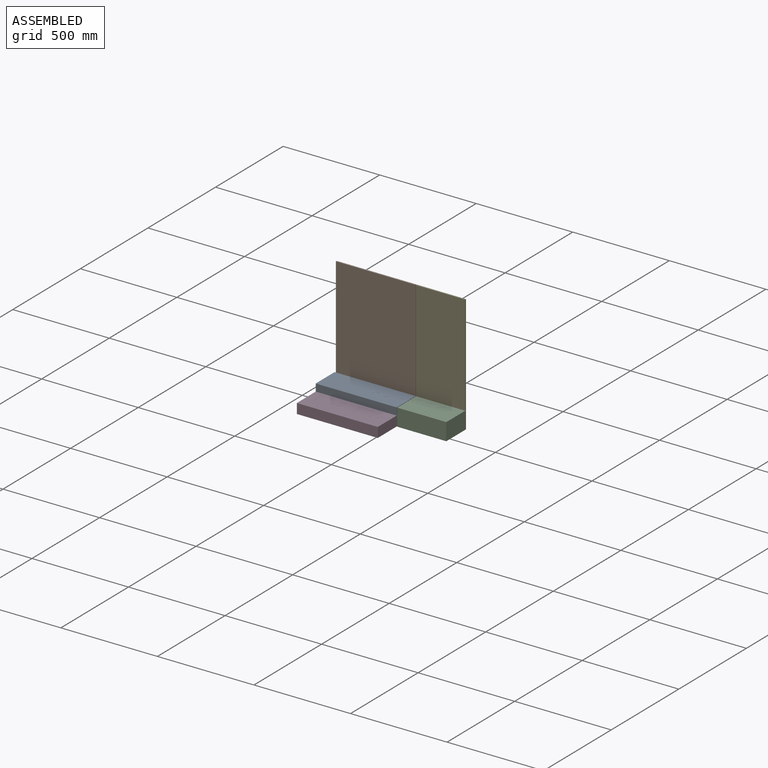
[diagram: assembled view]
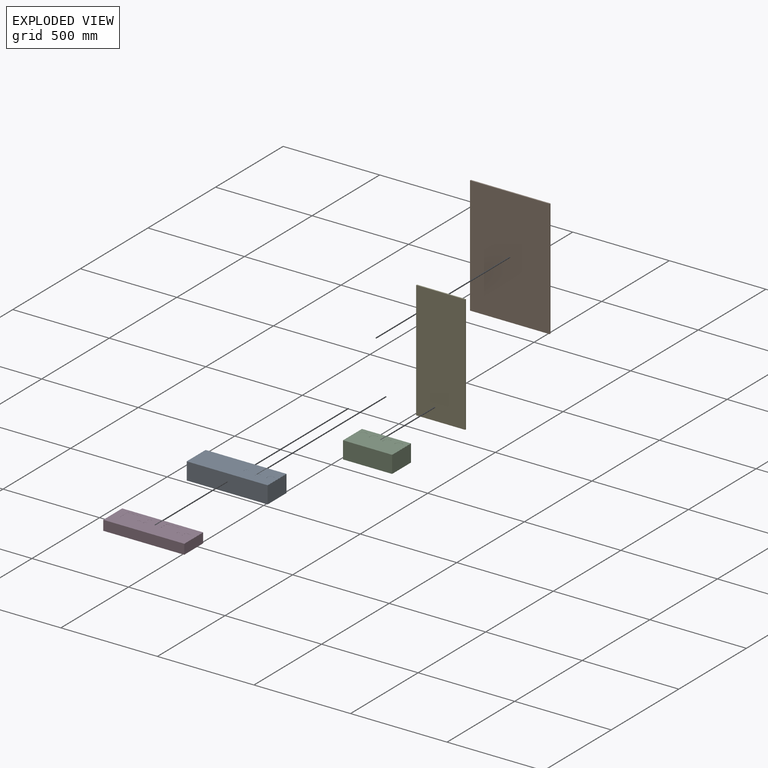
[diagram: exploded view]
GUIDED TOUR — MATED ASSEMBLY (Onshape document f00963a7d7a4211e00dad0f2, AutoMate assembly f00963a7d7a4211e00dad0f2_93f766040c664074911c7c15_0f9a326952b8779f440d1b9e_default)

This assembly has 5 components, labeled P0..P4 below (a component is one placed occurrence of a part; the same part can appear more than once), held together by 9 mates. A mate is a constraint between two components; its type names the relative motion it leaves free:
  PLANAR — leaves sliding in the plane through the listed point (normal = the listed direction) and rotation about that normal free.
Axis/direction vectors are unit vectors and 'through' points are millimeter coordinates, both in the assembly's world frame.

MATES
  1. PLANAR "Planar 3": P0 <-> P1, direction (0.000, 1.000, 0.000) through (-183.92, 86.65, 11.47) mm
  2. PLANAR "Planar 5": P0 <-> P3, direction (0.000, -1.000, 0.000) through (-183.92, -53.05, -32.65) mm
  3. PLANAR "Planar 4": P0 <-> P3, direction (1.000, 0.000, 0.000) through (25.63, 16.80, -32.77) mm
  4. PLANAR "Planar 9": P4 <-> P2, direction (-1.000, 0.000, 0.000) through (28.81, 89.82, 227.37) mm
  5. PLANAR "Planar 2": P0 <-> P1, direction (1.000, 0.000, 0.000) through (25.63, 16.80, -32.77) mm
  6. PLANAR "Planar 8": P4 <-> P2, direction (0.000, -1.000, 0.000) through (155.81, 86.65, 227.37) mm
  7. PLANAR "Planar 1": P1 <-> P0, direction (0.000, 0.000, -1.000) through (-180.74, 89.82, -77.43) mm
  8. PLANAR "Planar 7": P4 <-> P2, direction (0.000, 0.000, -1.000) through (155.81, 89.82, -77.43) mm
  9. PLANAR "Planar 6": P0 <-> P3, direction (0.000, 0.000, -1.000) through (-183.92, 16.80, -77.43) mm

ASSEMBLY ORDER
  1. P4 — the base component [order verified]
  2. P1 [order verified]
  3. P2 [order verified]
  4. P0 [order verified]
  5. P3 [order verified]
Order-tag legend:
  [order verified] — this step's position reverses a verified removal order: the component was checked to insert without passing through the ones already placed.

Of the 5 components, 4 carry the full construction recipe — the FeatureScript program that regenerates the part's solid from scratch; the rest are supplied as boundary geometry only.
Each toured component is shown spotlighted twice — in the assembled view, then in the exploded view, where a leader line traces a displaced component back to its assembled socket (saturated green if recipe-attached, orange if geometry-only; every other component desaturated gray) — followed by its recipe or geometry summary and the mates that hold it.
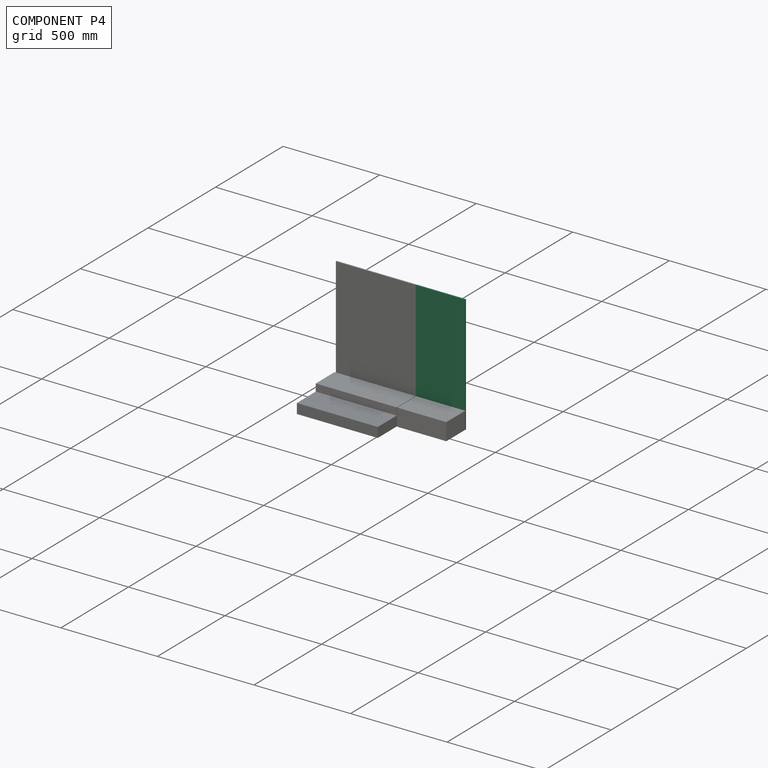
[diagram: component P4 — assembled]
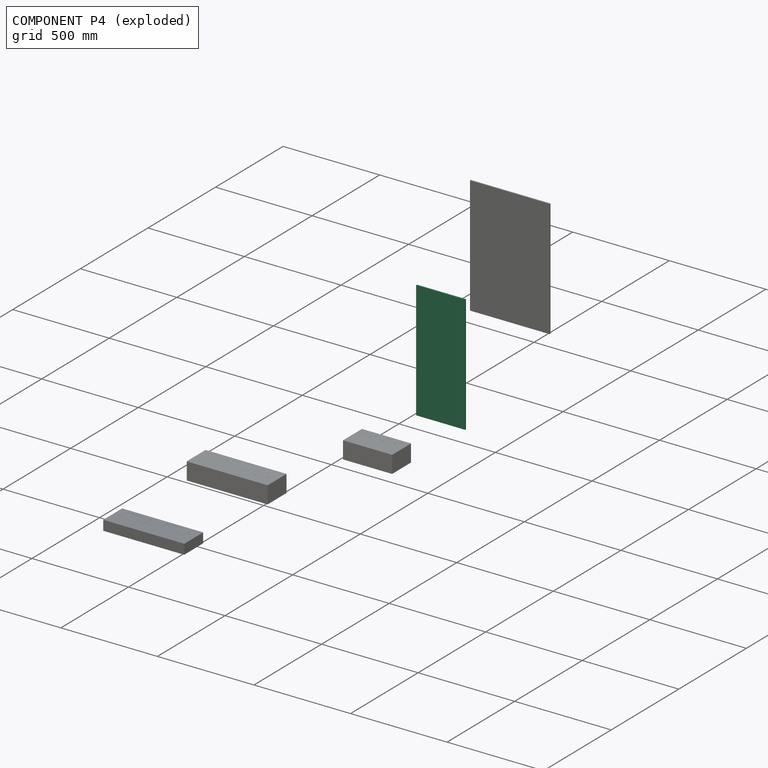
[diagram: component P4 — exploded]
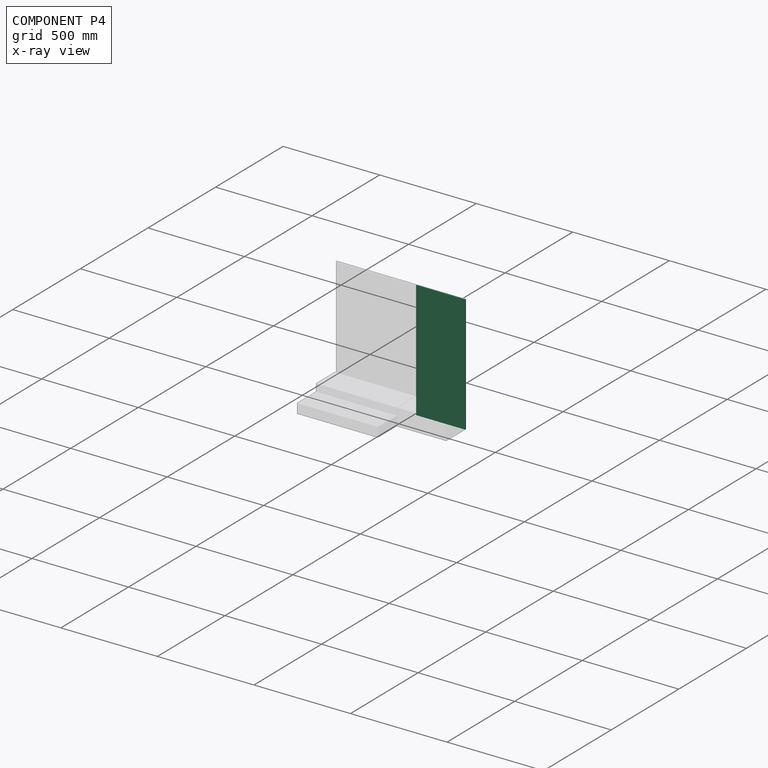
[diagram: component P4 — x-ray view]
COMPONENT P4 — recipe-attached (CADFS 00839162, mesh-verified: the recipe's output STEP matches this component's geometry to below the mesh-comparison resolution (tessellation chordal tolerance ~0.991 mm)).
Held by: PLANAR mate "Planar 9" to P2; PLANAR mate "Planar 8" to P2; PLANAR mate "Planar 7" to P2.
Construction recipe (FeatureScript — the CAD program that rebuilds this solid; sketch coordinates are in the units given by the * unit suffixes, e.g. mm):

FeatureScript 1511;
import(path : "onshape/std/geometry.fs", version : "1511.0");
import(path : "onshape/std/common.fs", version : "1511.0");
const mm = millimeter;
const VERTEX = EntityType.VERTEX;
const EDGE = EntityType.EDGE;
const FACE = EntityType.FACE;
const BODY = EntityType.BODY;
function v(x, y){return vector(x, y);}
function OD(order){return orderDisambiguation(order);}
function OSD(set){return originalSetDisambiguation(set);}
function TD(topology){return topologyDisambiguation(topology);}
function TDD(query){return trueDependencyDisambiguation(query);}
function sQuery(a, b, c) {return sketchEntityQuery(a, b, c);}

annotation { "Feature Type Name" : "Feature", "Feature Type Description" : "" }
export const myFeature = defineFeature(function(context is Context, id is Id, definition is map)
    precondition{}
    {
        {
            var Q0;
            Q0=qCreatedBy(makeId("Front.planeOp"),FACE);
            var sketch = newSketch(context, id + "F0", { "sketchPlane" : qUnion([Q0])});
            skLineSegment(sketch, "E0.bottom", {"start": v(0, 0) * mm, "end": v(-254, 0) * mm});
            skLineSegment(sketch, "E0.top", {"start": v(0, 609.6) * mm, "end": v(-254, 609.6) * mm});
            skLineSegment(sketch, "E0.left", {"start": v(0, 0) * mm, "end": v(0, 609.6) * mm});
            skLineSegment(sketch, "E0.right", {"start": v(-254, 0) * mm, "end": v(-254, 609.6) * mm});
            skSolve(sketch);
        }
        {
            var Q0;
            Q0=qSketchRegion(id+"F0",true);
            extrude(context, id + "F1", {"entities" : qUnion([Q0]), "oppositeDirection" : true, "depth" : 6.35 * mm, "offsetDistance" : 25.4 * mm});
        }
    });
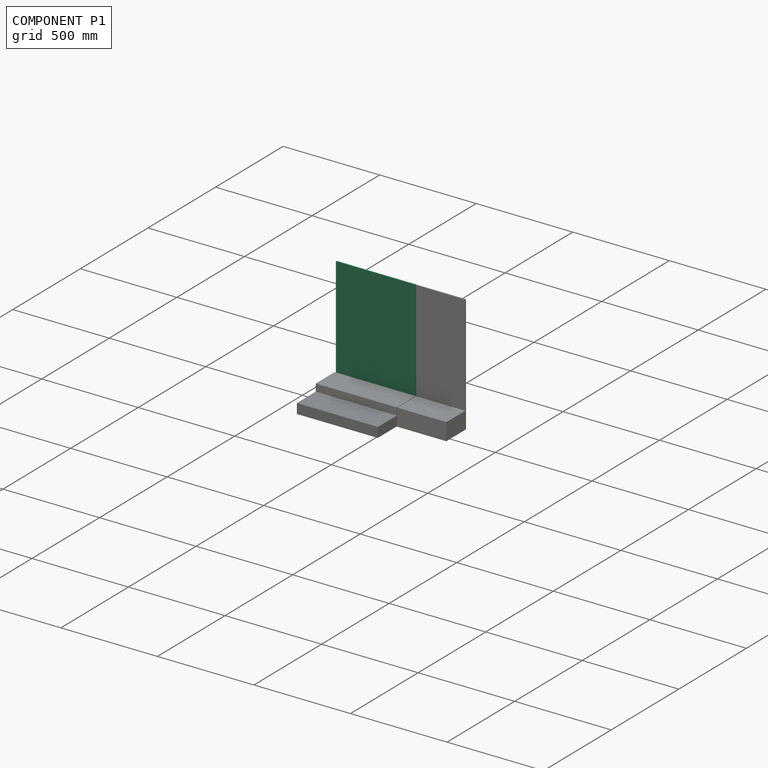
[diagram: component P1 — assembled]
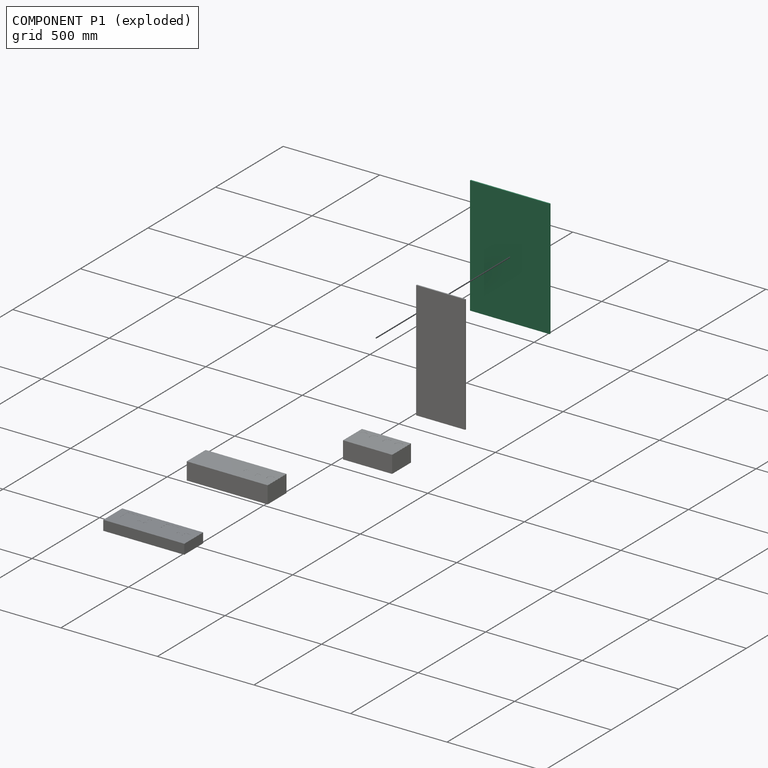
[diagram: component P1 — exploded]
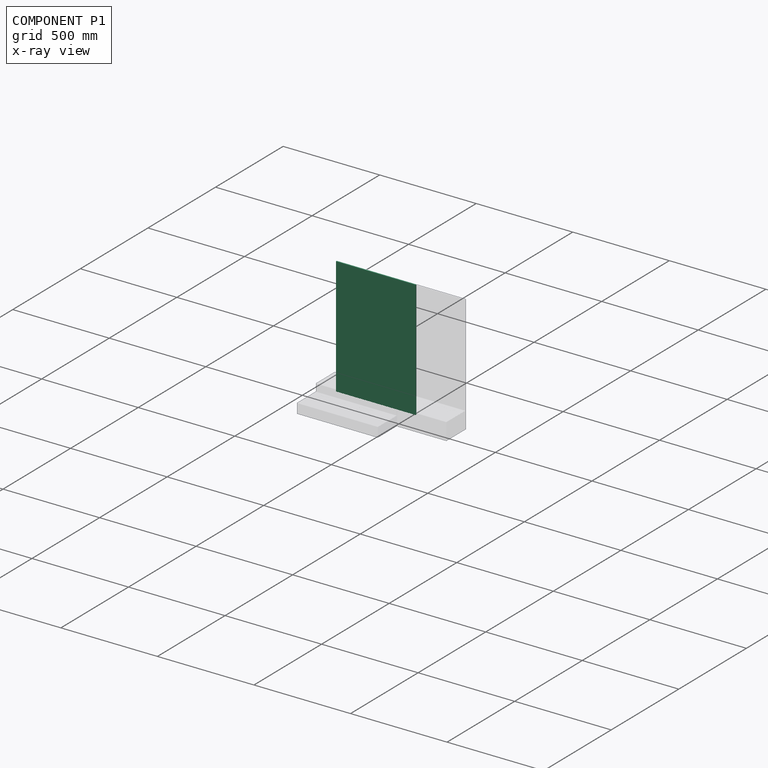
[diagram: component P1 — x-ray view]
COMPONENT P1 — recipe-attached (CADFS 00839161, mesh-verified: the recipe's output STEP matches this component's geometry to below the mesh-comparison resolution (tessellation chordal tolerance ~1.1 mm)).
Held by: PLANAR mate "Planar 3" to P0; PLANAR mate "Planar 2" to P0; PLANAR mate "Planar 1" to P0.
Construction recipe (FeatureScript — the CAD program that rebuilds this solid; sketch coordinates are in the units given by the * unit suffixes, e.g. mm):

FeatureScript 1511;
import(path : "onshape/std/geometry.fs", version : "1511.0");
import(path : "onshape/std/common.fs", version : "1511.0");
const mm = millimeter;
const VERTEX = EntityType.VERTEX;
const EDGE = EntityType.EDGE;
const FACE = EntityType.FACE;
const BODY = EntityType.BODY;
function v(x, y){return vector(x, y);}
function OD(order){return orderDisambiguation(order);}
function OSD(set){return originalSetDisambiguation(set);}
function TD(topology){return topologyDisambiguation(topology);}
function TDD(query){return trueDependencyDisambiguation(query);}
function sQuery(a, b, c) {return sketchEntityQuery(a, b, c);}

annotation { "Feature Type Name" : "Feature", "Feature Type Description" : "" }
export const myFeature = defineFeature(function(context is Context, id is Id, definition is map)
    precondition{}
    {
        {
            var Q0;
            Q0=qCreatedBy(makeId("Front.planeOp"),FACE);
            var sketch = newSketch(context, id + "F0", { "sketchPlane" : qUnion([Q0])});
            skLineSegment(sketch, "E0.bottom", {"start": v(0, 0) * mm, "end": v(-412.75, 0) * mm});
            skLineSegment(sketch, "E0.top", {"start": v(0, 609.6) * mm, "end": v(-412.75, 609.6) * mm});
            skLineSegment(sketch, "E0.left", {"start": v(0, 0) * mm, "end": v(0, 609.6) * mm});
            skLineSegment(sketch, "E0.right", {"start": v(-412.75, 0) * mm, "end": v(-412.75, 609.6) * mm});
            skSolve(sketch);
        }
        {
            var Q0;
            Q0 = qSketchRegion(id + "F0", true);
            extrude(context, id + "F1", {"entities" : qUnion([Q0]), "oppositeDirection" : true, "depth" : 6.35 * mm, "offsetDistance" : 25.4 * mm});
        }
    });
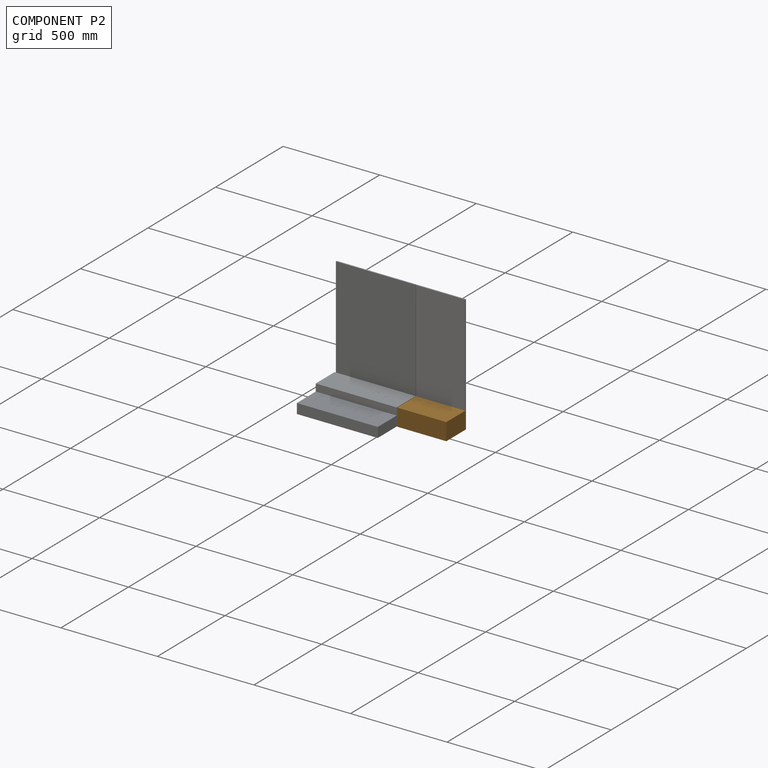
[diagram: component P2 — assembled]
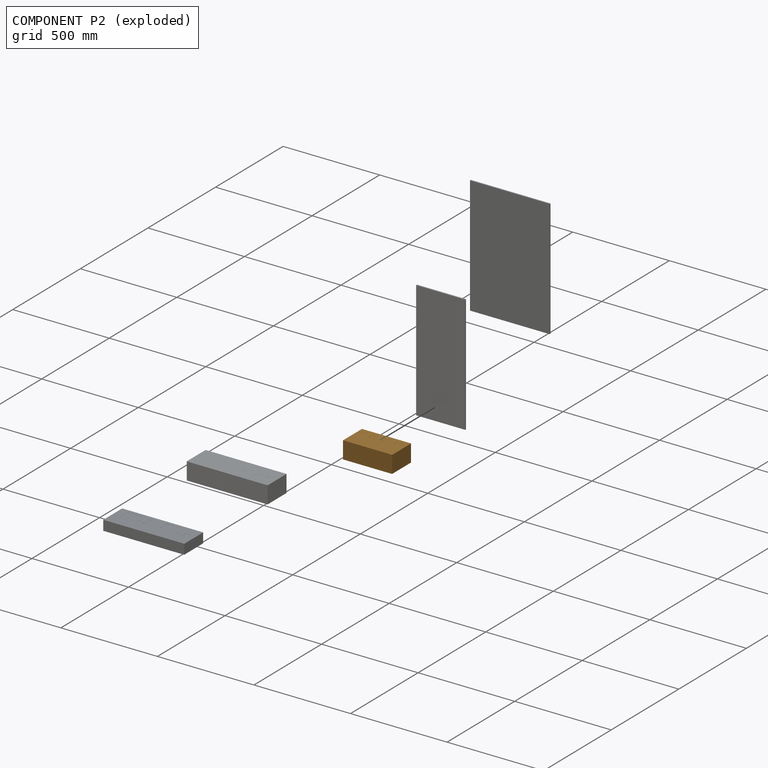
[diagram: component P2 — exploded]
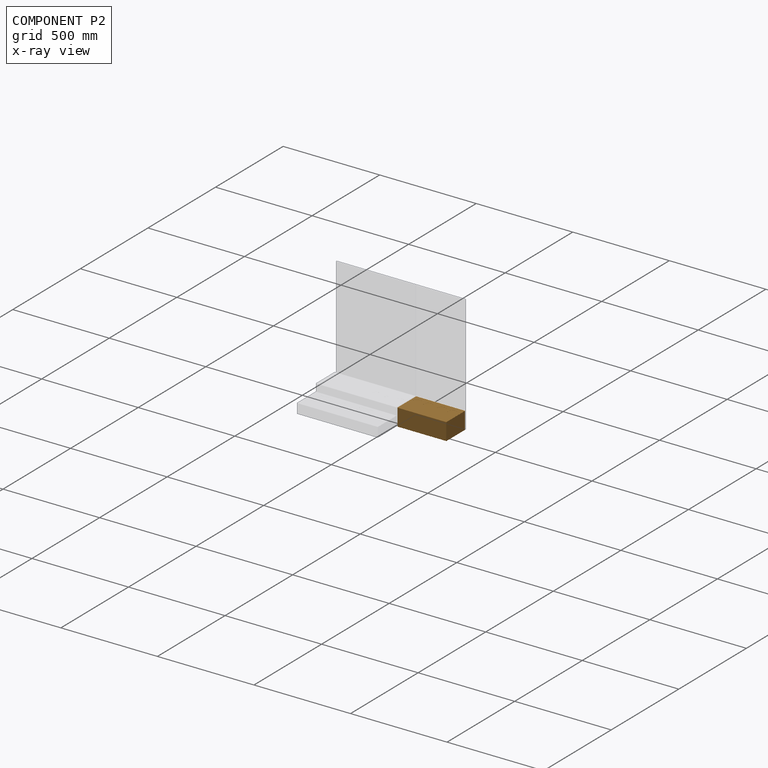
[diagram: component P2 — x-ray view]
COMPONENT P2 — geometry summary (no construction recipe available for this part):
  bounding box: 254.0 x 139.7 x 89.6 mm
  B-rep topology: 1 solid, 26 faces, 144 edges
  volume: 3166701 mm^3 (100% of its bounding box)
  symmetry: 2-fold rotationally symmetric about the x axis; 2-fold rotationally symmetric about the y axis; 2-fold rotationally symmetric about the z axis; mirror-symmetric across its x mid-plane, y mid-plane, z mid-plane
Held by: PLANAR mate "Planar 9" to P4; PLANAR mate "Planar 8" to P4; PLANAR mate "Planar 7" to P4.
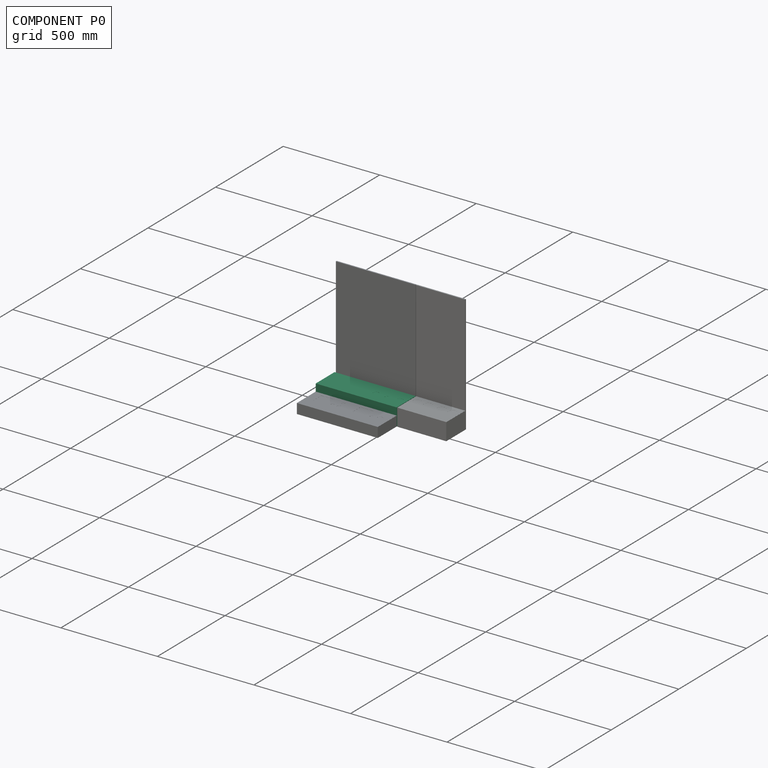
[diagram: component P0 — assembled]
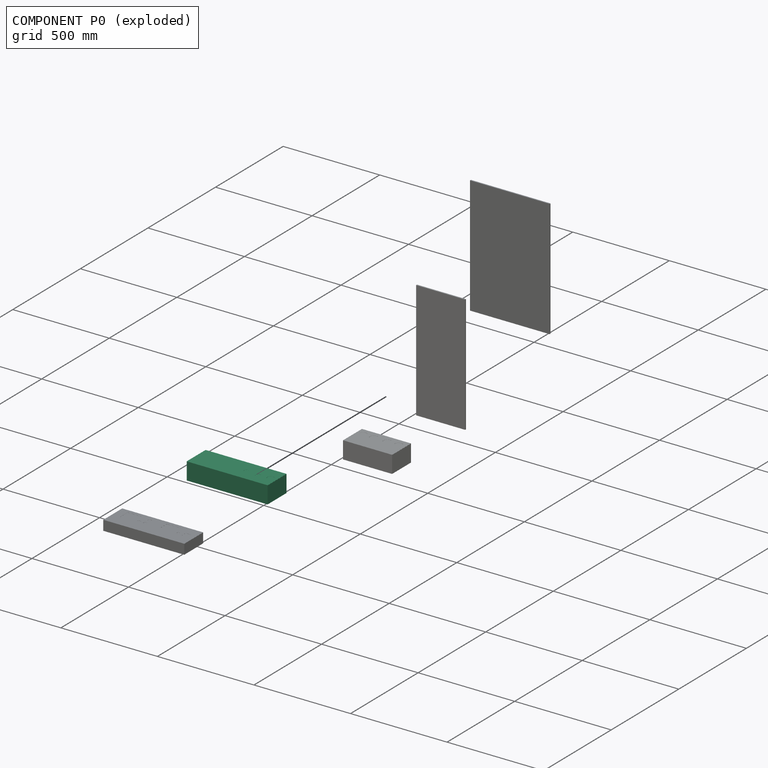
[diagram: component P0 — exploded]
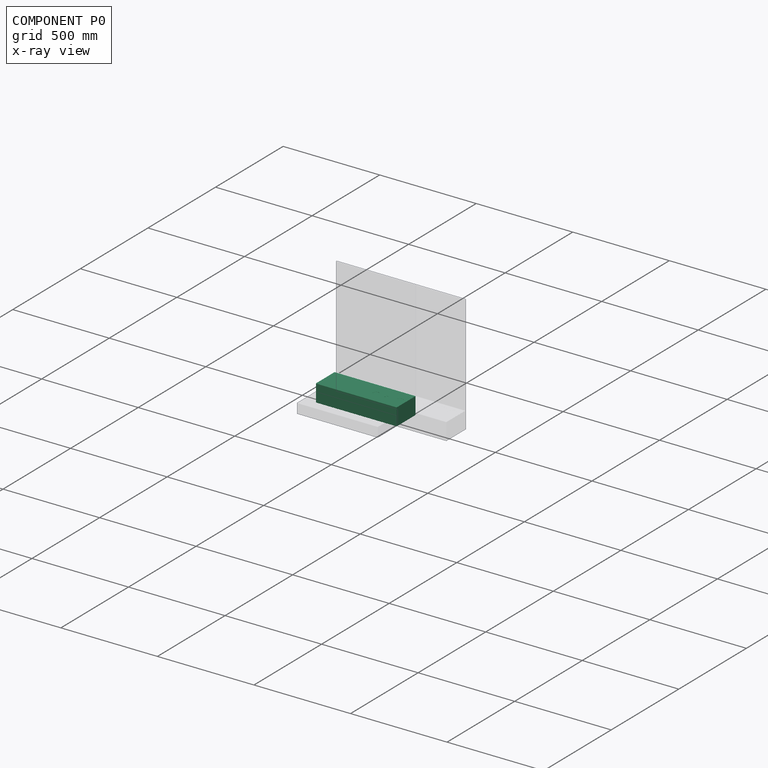
[diagram: component P0 — x-ray view]
COMPONENT P0 — recipe-attached (CADFS 00867122, mesh-verified: the recipe's output STEP matches this component's geometry to below the mesh-comparison resolution (tessellation chordal tolerance ~0.676 mm)).
Held by: PLANAR mate "Planar 3" to P1; PLANAR mate "Planar 5" to P3; PLANAR mate "Planar 4" to P3; PLANAR mate "Planar 2" to P1; PLANAR mate "Planar 1" to P1; PLANAR mate "Planar 6" to P3.
Construction recipe (FeatureScript — the CAD program that rebuilds this solid; sketch coordinates are in the units given by the * unit suffixes, e.g. mm):

FeatureScript 1511;
import(path : "onshape/std/geometry.fs", version : "1511.0");
import(path : "onshape/std/common.fs", version : "1511.0");
const mm = millimeter;
const VERTEX = EntityType.VERTEX;
const EDGE = EntityType.EDGE;
const FACE = EntityType.FACE;
const BODY = EntityType.BODY;
function v(x, y){return vector(x, y);}
function OD(order){return orderDisambiguation(order);}
function OSD(set){return originalSetDisambiguation(set);}
function TD(topology){return topologyDisambiguation(topology);}
function TDD(query){return trueDependencyDisambiguation(query);}
function sQuery(a, b, c) {return sketchEntityQuery(a, b, c);}

annotation { "Feature Type Name" : "Feature", "Feature Type Description" : "" }
export const myFeature = defineFeature(function(context is Context, id is Id, definition is map)
    precondition{}
    {
        {
            var Q0;
            Q0=qCreatedBy(makeId("Right.planeOp"),FACE);
            var sketch = newSketch(context, id + "F0", { "sketchPlane" : qUnion([Q0])});
            skLineSegment(sketch, "E0.bottom", {"start": v(0, 0) * mm, "end": v(-139.7, 0) * mm});
            skLineSegment(sketch, "E0.top", {"start": v(0, 88.9) * mm, "end": v(-139.3, 88.9) * mm});
            skLineSegment(sketch, "E0.left", {"start": v(0, 0) * mm, "end": v(0, 88.9) * mm});
            skLineSegment(sketch, "E0.right", {"start": v(-139.7, 0) * mm, "end": v(-139.7, 89.56) * mm});
            skLineSegment(sketch, "E1", {"start": v(-139.7, 89.56) * mm, "end": v(0, 89.56) * mm});
            skLineSegment(sketch, "E2", {"start": v(0, 89.56) * mm, "end": v(0, 89.15) * mm});
            skLineSegment(sketch, "E3", {"start": v(0, 89.15) * mm, "end": v(-139.3, 89.15) * mm});
            skLineSegment(sketch, "E4", {"start": v(-139.3, 88.9) * mm, "end": v(-139.3, 89.15) * mm});
            skLineSegment(sketch, "E5", {"start": v(-139.3, 88.9) * mm, "end": v(-139.7, 88.9) * mm, "construction": true});
            skSolve(sketch);
        }
        {
            var Q0;
            Q0=qSketchRegion(id+"F0",true);
            extrude(context, id + "F1", {"entities" : qUnion([Q0]), "endBound" : BoundingType.SYMMETRIC, "depth" : 419.1 * mm, "offsetDistance" : 25.4 * mm});
        }
        {
            var Q0;
            Q0=makeQuery(id+"F1.opExtrude","SWEPT_FACE",FACE,{"disambiguationData":[OSD([sQuery(id+"F0.wireOp",EDGE,"E1")])]});
            var sketch = newSketch(context, id + "F2", { "sketchPlane" : qUnion([Q0])});
            skLineSegment(sketch, "E6", {"start": v(107.52, -70.62) * mm, "end": v(107.52, -87.29) * mm});
            skLineSegment(sketch, "E7", {"start": v(127.36, -87.29) * mm, "end": v(127.36, -70.62) * mm});
            skLineSegment(sketch, "E8", {"start": v(-209.58, -139.68) * mm, "end": v(-209.58, -0.77) * mm, "construction": true});
            skLineSegment(sketch, "E9", {"start": v(209.52, -139.68) * mm, "end": v(209.52, -0.77) * mm, "construction": true});
            skLineSegment(sketch, "E10", {"start": v(-209.58, -0.77) * mm, "end": v(209.52, -0.77) * mm, "construction": true});
            skLineSegment(sketch, "E11", {"start": v(109.1, -88.88) * mm, "end": v(125.78, -88.88) * mm});
            skLineSegment(sketch, "E12", {"start": v(125.78, -69.03) * mm, "end": v(109.1, -69.03) * mm});
            skLineSegment(sketch, "E13", {"start": v(209.52, -139.68) * mm, "end": v(-209.58, -139.68) * mm, "construction": true});
            skFitSpline(sketch, "E14", {"points": [v(57.12, -59.5) * mm, v(53.27, -59.5) * mm, v(49.45, -61.1) * mm, v(46.73, -63.8) * mm]});
            skFitSpline(sketch, "E15", {"points": [v(46.73, -63.8) * mm, v(44.01, -66.53) * mm, v(42.43, -70.35) * mm, v(42.43, -74.2) * mm, v(42.43, -78.04) * mm, v(44.01, -81.86) * mm, v(46.73, -84.58) * mm]});
            skFitSpline(sketch, "E16", {"points": [v(46.73, -84.58) * mm, v(49.45, -87.3) * mm, v(53.27, -88.88) * mm, v(57.12, -88.88) * mm, v(60.96, -88.88) * mm, v(64.78, -87.3) * mm, v(67.5, -84.58) * mm]});
            skFitSpline(sketch, "E17", {"points": [v(67.5, -84.58) * mm, v(70.22, -81.86) * mm, v(71.8, -78.04) * mm, v(71.8, -74.2) * mm, v(71.8, -70.35) * mm, v(70.22, -66.53) * mm, v(67.5, -63.8) * mm]});
            skFitSpline(sketch, "E18", {"points": [v(67.5, -63.8) * mm, v(64.78, -61.1) * mm, v(60.96, -59.5) * mm, v(57.12, -59.5) * mm]});
            skFitSpline(sketch, "E19", {"points": [v(109.1, -69.03) * mm, v(108.7, -69.03) * mm, v(108.28, -69.2) * mm, v(107.98, -69.5) * mm]});
            skFitSpline(sketch, "E20", {"points": [v(107.98, -69.5) * mm, v(107.7, -69.8) * mm, v(107.52, -70.2) * mm, v(107.52, -70.62) * mm]});
            skFitSpline(sketch, "E21", {"points": [v(107.52, -87.29) * mm, v(107.52, -87.7) * mm, v(107.7, -88.12) * mm, v(107.98, -88.41) * mm]});
            skFitSpline(sketch, "E22", {"points": [v(107.98, -88.41) * mm, v(108.28, -88.7) * mm, v(108.7, -88.88) * mm, v(109.1, -88.88) * mm]});
            skFitSpline(sketch, "E23", {"points": [v(125.78, -88.88) * mm, v(126.2, -88.88) * mm, v(126.6, -88.7) * mm, v(126.9, -88.41) * mm]});
            skFitSpline(sketch, "E24", {"points": [v(126.9, -88.41) * mm, v(127.2, -88.12) * mm, v(127.36, -87.7) * mm, v(127.36, -87.29) * mm]});
            skFitSpline(sketch, "E25", {"points": [v(127.36, -70.62) * mm, v(127.36, -70.2) * mm, v(127.2, -69.8) * mm, v(126.9, -69.5) * mm]});
            skFitSpline(sketch, "E26", {"points": [v(126.9, -69.5) * mm, v(126.6, -69.2) * mm, v(126.2, -69.03) * mm, v(125.78, -69.03) * mm]});
            skFitSpline(sketch, "E27", {"points": [v(177.77, -55.54) * mm, v(173.4, -55.54) * mm, v(169.07, -57.34) * mm, v(165.98, -60.42) * mm]});
            skFitSpline(sketch, "E28", {"points": [v(165.98, -60.42) * mm, v(162.9, -63.5) * mm, v(161.1, -67.84) * mm, v(161.1, -72.2) * mm, v(161.1, -76.57) * mm, v(162.9, -80.9) * mm, v(165.98, -84) * mm]});
            skFitSpline(sketch, "E29", {"points": [v(165.98, -84) * mm, v(169.07, -87.08) * mm, v(173.4, -88.88) * mm, v(177.77, -88.88) * mm, v(182.13, -88.88) * mm, v(186.47, -87.08) * mm, v(189.55, -84) * mm]});
            skFitSpline(sketch, "E30", {"points": [v(189.55, -84) * mm, v(192.64, -80.9) * mm, v(194.43, -76.57) * mm, v(194.43, -72.2) * mm, v(194.43, -67.84) * mm, v(192.64, -63.5) * mm, v(189.55, -60.42) * mm]});
            skFitSpline(sketch, "E31", {"points": [v(189.55, -60.42) * mm, v(186.47, -57.34) * mm, v(182.13, -55.54) * mm, v(177.77, -55.54) * mm]});
            skSolve(sketch);
        }
        {
            var Q0;
            Q0=qSketchRegion(id+"F2",true);
            var Q1;
            Q1=makeQuery(id+"F1.opExtrude","SWEPT_FACE",FACE,{"disambiguationData":[OSD([sQuery(id+"F0.wireOp",EDGE,"E3")])]});
            extrude(context, id + "F3", {"entities" : qUnion([Q0]), "operationType" : NewBodyOperationType.REMOVE, "endBound" : BoundingType.UP_TO_SURFACE, "oppositeDirection" : true, "depth" : 25.4 * mm, "endBoundEntityFace" : qUnion([Q1]), "offsetDistance" : 25.4 * mm});
        }
    });
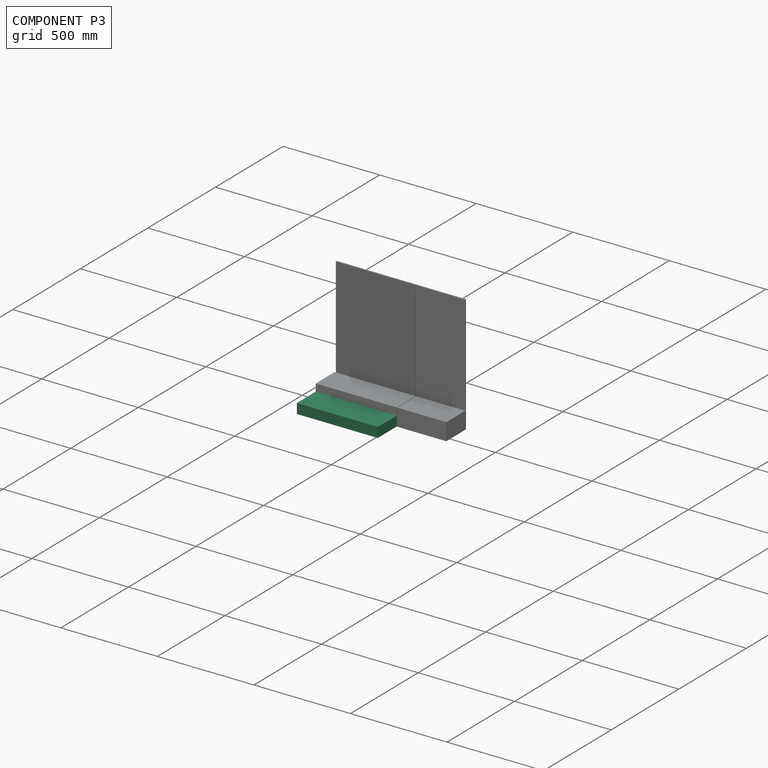
[diagram: component P3 — assembled]
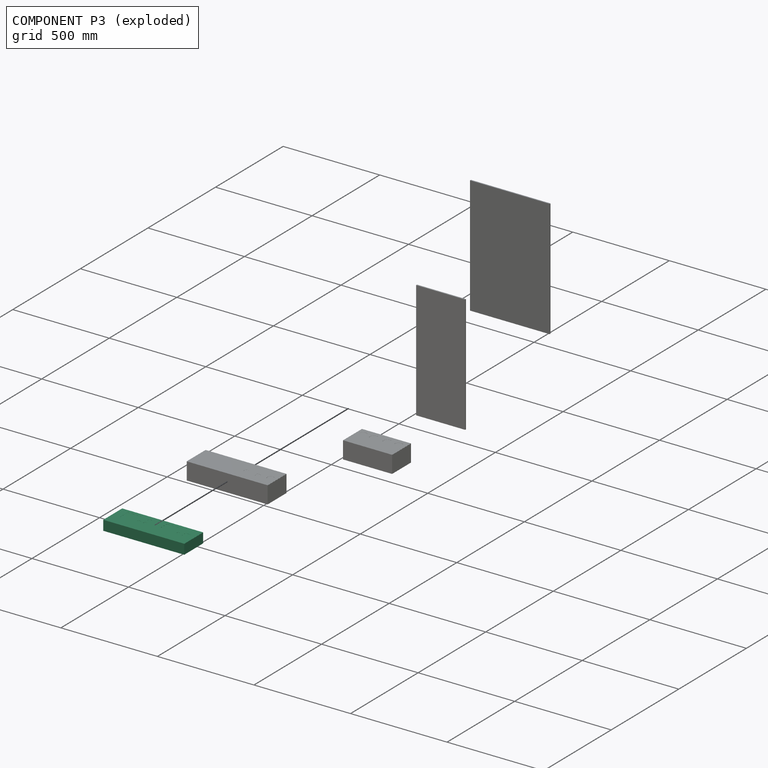
[diagram: component P3 — exploded]
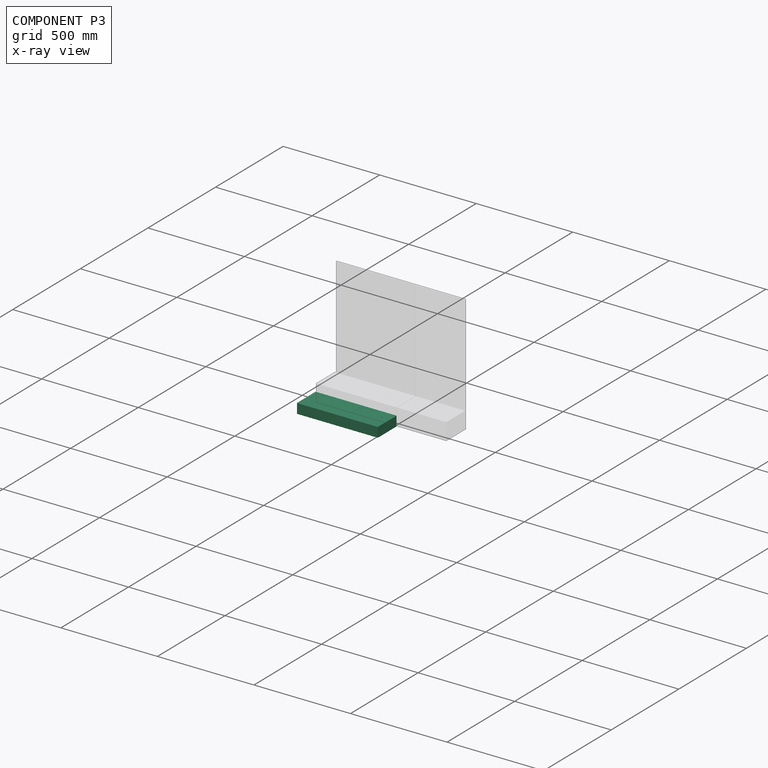
[diagram: component P3 — x-ray view]
COMPONENT P3 — recipe-attached (CADFS 00867129, mesh-verified: the recipe's output STEP matches this component's geometry to below the mesh-comparison resolution (tessellation chordal tolerance ~0.667 mm)).
Held by: PLANAR mate "Planar 5" to P0; PLANAR mate "Planar 4" to P0; PLANAR mate "Planar 6" to P0.
Construction recipe (FeatureScript — the CAD program that rebuilds this solid; sketch coordinates are in the units given by the * unit suffixes, e.g. mm):

FeatureScript 1511;
import(path : "onshape/std/geometry.fs", version : "1511.0");
import(path : "onshape/std/common.fs", version : "1511.0");
const mm = millimeter;
const VERTEX = EntityType.VERTEX;
const EDGE = EntityType.EDGE;
const FACE = EntityType.FACE;
const BODY = EntityType.BODY;
function v(x, y){return vector(x, y);}
function OD(order){return orderDisambiguation(order);}
function OSD(set){return originalSetDisambiguation(set);}
function TD(topology){return topologyDisambiguation(topology);}
function TDD(query){return trueDependencyDisambiguation(query);}
function sQuery(a, b, c) {return sketchEntityQuery(a, b, c);}

annotation { "Feature Type Name" : "Feature", "Feature Type Description" : "" }
export const myFeature = defineFeature(function(context is Context, id is Id, definition is map)
    precondition{}
    {
        {
            var Q0;
            Q0=qCreatedBy(makeId("Right.planeOp"),FACE);
            var sketch = newSketch(context, id + "F0", { "sketchPlane" : qUnion([Q0])});
            skLineSegment(sketch, "E0.bottom", {"start": v(0, 0) * mm, "end": v(-139.7, 0) * mm});
            skLineSegment(sketch, "E0.top", {"start": v(0, 50.8) * mm, "end": v(-139.3, 50.8) * mm});
            skLineSegment(sketch, "E0.left", {"start": v(0, 0) * mm, "end": v(0, 50.8) * mm});
            skLineSegment(sketch, "E0.right", {"start": v(-139.7, 0) * mm, "end": v(-139.7, 51.46) * mm});
            skLineSegment(sketch, "E1", {"start": v(-139.7, 51.46) * mm, "end": v(0, 51.46) * mm});
            skLineSegment(sketch, "E2", {"start": v(0, 51.46) * mm, "end": v(0, 51.05) * mm});
            skLineSegment(sketch, "E3", {"start": v(0, 51.05) * mm, "end": v(-139.3, 51.05) * mm});
            skLineSegment(sketch, "E4", {"start": v(-139.3, 50.8) * mm, "end": v(-139.3, 51.05) * mm});
            skLineSegment(sketch, "E5", {"start": v(-139.3, 50.8) * mm, "end": v(-139.7, 50.8) * mm, "construction": true});
            skSolve(sketch);
        }
        {
            var Q0;
            Q0=qSketchRegion(id+"F0",true);
            extrude(context, id + "F1", {"entities" : qUnion([Q0]), "endBound" : BoundingType.SYMMETRIC, "depth" : 419.1 * mm, "offsetDistance" : 25.4 * mm});
        }
        {
            var Q0;
            Q0=makeQuery(id+"F1.opExtrude","SWEPT_FACE",FACE,{"disambiguationData":[OSD([sQuery(id+"F0.wireOp",EDGE,"E1")])]});
            var sketch = newSketch(context, id + "F2", { "sketchPlane" : qUnion([Q0])});
            skLineSegment(sketch, "E6", {"start": v(-97.97, -74.82) * mm, "end": v(-97.97, -19.26) * mm});
            skLineSegment(sketch, "E7", {"start": v(-97.97, -19.26) * mm, "end": v(-167.82, -19.26) * mm});
            skLineSegment(sketch, "E8", {"start": v(-167.82, -19.26) * mm, "end": v(-167.82, -74.82) * mm});
            skLineSegment(sketch, "E9", {"start": v(-167.82, -74.82) * mm, "end": v(-97.97, -74.82) * mm});
            skLineSegment(sketch, "E10", {"start": v(35.38, -74.82) * mm, "end": v(105.23, -74.82) * mm});
            skLineSegment(sketch, "E11", {"start": v(35.38, -19.26) * mm, "end": v(35.38, -74.82) * mm});
            skLineSegment(sketch, "E12", {"start": v(105.23, -19.26) * mm, "end": v(35.38, -19.26) * mm});
            skLineSegment(sketch, "E13", {"start": v(105.23, -74.82) * mm, "end": v(105.23, -19.26) * mm});
            skLineSegment(sketch, "E14", {"start": v(120.71, -63.71) * mm, "end": v(120.71, -72.44) * mm});
            skLineSegment(sketch, "E15", {"start": v(134.2, -72.44) * mm, "end": v(134.2, -63.71) * mm});
            skLineSegment(sketch, "E16", {"start": v(152.46, -74.82) * mm, "end": v(178.66, -74.82) * mm});
            skLineSegment(sketch, "E17", {"start": v(152.46, -48.63) * mm, "end": v(152.46, -74.82) * mm});
            skLineSegment(sketch, "E18", {"start": v(178.66, -48.63) * mm, "end": v(152.46, -48.63) * mm});
            skLineSegment(sketch, "E19", {"start": v(178.66, -74.82) * mm, "end": v(178.66, -48.63) * mm});
            skLineSegment(sketch, "E20", {"start": v(-209.1, -138.32) * mm, "end": v(-209.1, 0.58) * mm, "construction": true});
            skLineSegment(sketch, "E21", {"start": v(210, -138.32) * mm, "end": v(210, 0.58) * mm, "construction": true});
            skLineSegment(sketch, "E22", {"start": v(-209.1, 0.58) * mm, "end": v(210, 0.58) * mm, "construction": true});
            skLineSegment(sketch, "E23", {"start": v(131.82, -61.33) * mm, "end": v(123.1, -61.33) * mm});
            skLineSegment(sketch, "E24", {"start": v(123.1, -74.82) * mm, "end": v(131.82, -74.82) * mm});
            skLineSegment(sketch, "E25", {"start": v(210, -138.32) * mm, "end": v(-209.1, -138.32) * mm, "construction": true});
            skFitSpline(sketch, "E26", {"points": [v(-75.74, -58.16) * mm, v(-77.92, -58.16) * mm, v(-80.1, -59.05) * mm, v(-81.63, -60.6) * mm]});
            skFitSpline(sketch, "E27", {"points": [v(-81.63, -60.6) * mm, v(-83.18, -62.14) * mm, v(-84.08, -64.3) * mm, v(-84.08, -66.5) * mm, v(-84.08, -68.67) * mm, v(-83.18, -70.84) * mm, v(-81.63, -72.38) * mm]});
            skFitSpline(sketch, "E28", {"points": [v(-81.63, -72.38) * mm, v(-80.1, -73.93) * mm, v(-77.92, -74.82) * mm, v(-75.74, -74.82) * mm, v(-73.56, -74.82) * mm, v(-71.4, -73.93) * mm, v(-69.85, -72.38) * mm]});
            skFitSpline(sketch, "E29", {"points": [v(-69.85, -72.38) * mm, v(-68.3, -70.84) * mm, v(-67.4, -68.67) * mm, v(-67.4, -66.5) * mm, v(-67.4, -64.3) * mm, v(-68.3, -62.14) * mm, v(-69.85, -60.6) * mm]});
            skFitSpline(sketch, "E30", {"points": [v(-69.85, -60.6) * mm, v(-71.4, -59.05) * mm, v(-73.56, -58.16) * mm, v(-75.74, -58.16) * mm]});
            skFitSpline(sketch, "E31", {"points": [v(-44, -55.77) * mm, v(-46.48, -55.77) * mm, v(-48.96, -56.8) * mm, v(-50.73, -58.56) * mm]});
            skFitSpline(sketch, "E32", {"points": [v(-50.73, -58.56) * mm, v(-52.49, -60.33) * mm, v(-53.52, -62.8) * mm, v(-53.52, -65.3) * mm, v(-53.52, -67.8) * mm, v(-52.49, -70.27) * mm, v(-50.73, -72.04) * mm]});
            skFitSpline(sketch, "E33", {"points": [v(-50.73, -72.04) * mm, v(-48.96, -73.8) * mm, v(-46.48, -74.82) * mm, v(-44, -74.82) * mm, v(-41.5, -74.82) * mm, v(-39.02, -73.8) * mm, v(-37.26, -72.04) * mm]});
            skFitSpline(sketch, "E34", {"points": [v(-37.26, -72.04) * mm, v(-35.5, -70.27) * mm, v(-34.47, -67.8) * mm, v(-34.47, -65.3) * mm, v(-34.47, -62.8) * mm, v(-35.5, -60.33) * mm, v(-37.26, -58.56) * mm]});
            skFitSpline(sketch, "E35", {"points": [v(-37.26, -58.56) * mm, v(-39.02, -56.8) * mm, v(-41.5, -55.77) * mm, v(-44, -55.77) * mm]});
            skFitSpline(sketch, "E36", {"points": [v(-44, -24.02) * mm, v(-46.48, -24.02) * mm, v(-48.96, -25.05) * mm, v(-50.73, -26.81) * mm]});
            skFitSpline(sketch, "E37", {"points": [v(-50.73, -26.81) * mm, v(-52.49, -28.58) * mm, v(-53.52, -31.06) * mm, v(-53.52, -33.55) * mm, v(-53.52, -36.04) * mm, v(-52.49, -38.52) * mm, v(-50.73, -40.29) * mm]});
            skFitSpline(sketch, "E38", {"points": [v(-50.73, -40.29) * mm, v(-48.96, -42.05) * mm, v(-46.48, -43.07) * mm, v(-44, -43.07) * mm, v(-41.5, -43.07) * mm, v(-39.02, -42.05) * mm, v(-37.26, -40.29) * mm]});
            skFitSpline(sketch, "E39", {"points": [v(-37.26, -40.29) * mm, v(-35.5, -38.52) * mm, v(-34.47, -36.04) * mm, v(-34.47, -33.55) * mm, v(-34.47, -31.06) * mm, v(-35.5, -28.58) * mm, v(-37.26, -26.81) * mm]});
            skFitSpline(sketch, "E40", {"points": [v(-37.26, -26.81) * mm, v(-39.02, -25.05) * mm, v(-41.5, -24.02) * mm, v(-44, -24.02) * mm]});
            skFitSpline(sketch, "E41", {"points": [v(120.71, -72.44) * mm, v(120.71, -73.07) * mm, v(120.97, -73.69) * mm, v(121.4, -74.13) * mm]});
            skFitSpline(sketch, "E42", {"points": [v(121.4, -74.13) * mm, v(121.85, -74.57) * mm, v(122.47, -74.82) * mm, v(123.1, -74.82) * mm]});
            skFitSpline(sketch, "E43", {"points": [v(123.1, -61.33) * mm, v(122.47, -61.33) * mm, v(121.85, -61.59) * mm, v(121.4, -62.03) * mm]});
            skFitSpline(sketch, "E44", {"points": [v(121.4, -62.03) * mm, v(120.97, -62.47) * mm, v(120.71, -63.09) * mm, v(120.71, -63.71) * mm]});
            skFitSpline(sketch, "E45", {"points": [v(134.2, -63.71) * mm, v(134.2, -63.09) * mm, v(133.95, -62.47) * mm, v(133.5, -62.03) * mm]});
            skFitSpline(sketch, "E46", {"points": [v(133.5, -62.03) * mm, v(133.07, -61.59) * mm, v(132.45, -61.33) * mm, v(131.82, -61.33) * mm]});
            skFitSpline(sketch, "E47", {"points": [v(131.82, -74.82) * mm, v(132.45, -74.82) * mm, v(133.07, -74.57) * mm, v(133.5, -74.13) * mm]});
            skFitSpline(sketch, "E48", {"points": [v(133.5, -74.13) * mm, v(133.95, -73.69) * mm, v(134.2, -73.07) * mm, v(134.2, -72.44) * mm]});
            skSolve(sketch);
        }
        {
            var Q0;
            Q0=qSketchRegion(id+"F2",true);
            var Q1;
            Q1=makeQuery(id+"F1.opExtrude","SWEPT_FACE",FACE,{"disambiguationData":[OSD([sQuery(id+"F0.wireOp",EDGE,"E3")])]});
            extrude(context, id + "F3", {"entities" : qUnion([Q0]), "operationType" : NewBodyOperationType.REMOVE, "endBound" : BoundingType.UP_TO_SURFACE, "oppositeDirection" : true, "depth" : 25.4 * mm, "endBoundEntityFace" : qUnion([Q1]), "offsetDistance" : 25.4 * mm});
        }
    });
PROVENANCE & LICENSES
Assembly (occurrences, transforms, mates, per-part STEP geometry): AutoMate dataset, Zenodo record 7776208, CC0.
Construction recipes: CADFS (HuggingFace VladPyatov/CADFS, CC-BY-4.0, layered over the ABC dataset), FeatureScript reconstruction programs keyed by ABC model id.
Join: ABC meta listings map ABC model id -> Onshape documentId; within a shared document, parts are matched by geometric signature (bounding-box dims + volume at 0.1% relative tolerance, exact B-rep face/solid counts).
Verification: 4 of this assembly's 5 components carry a recipe attachment, and every attachment is mesh-verified: the CADFS STEP and the AutoMate member STEP were compared as meshes in their shared local frame (symmetric sampled-point-to-mesh distance); worst across the 4 attachments: below the mesh-comparison resolution (tessellation chordal tolerance ~1.1 mm) on a 736 mm part.
Renders: orthographic iso camera (az 35 / el 25); the floor grid conveys scale (grid pitch printed in each image; no ruler). In the exploded view each component is displaced by its stored offset vector: the offsets alone carry the explosion direction (mate normal/axis signs are not orientation cues and do not encode it), and separation distances are assigned per mate-chain, not proportionally to assembly-order depth.
